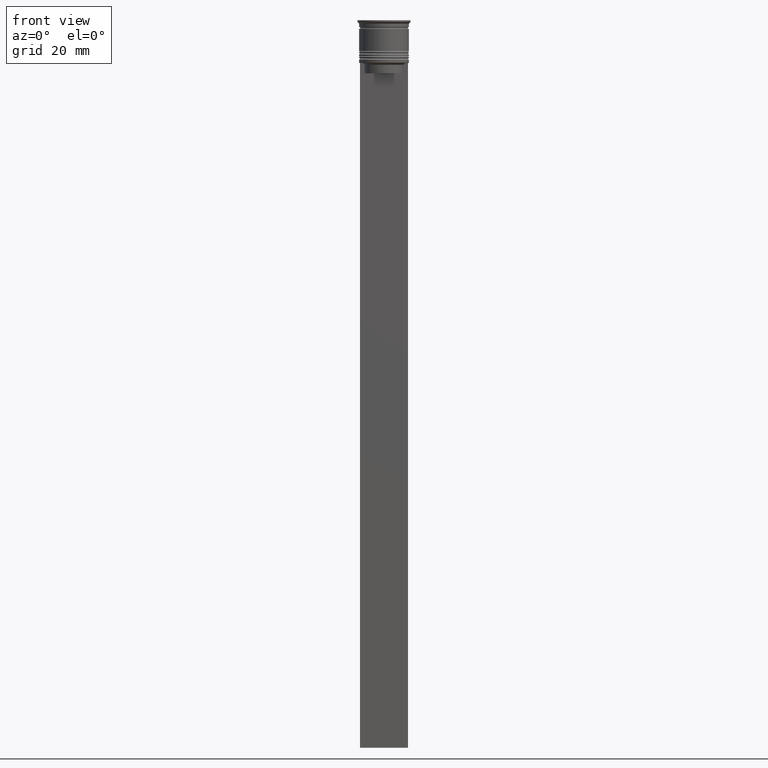
[diagram: clean part render]
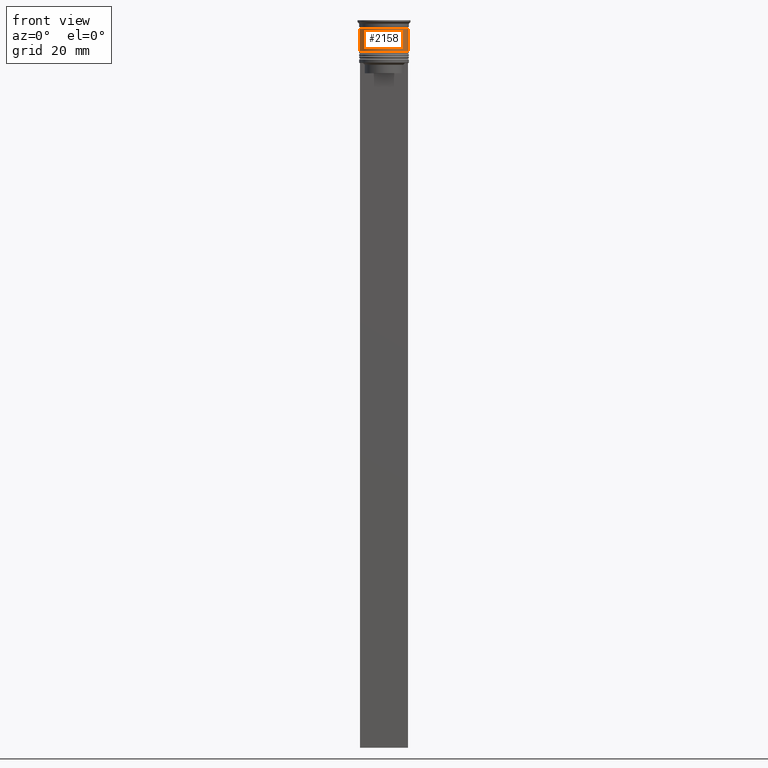
[diagram: same view with one face highlighted and labeled with its STEP entity id]
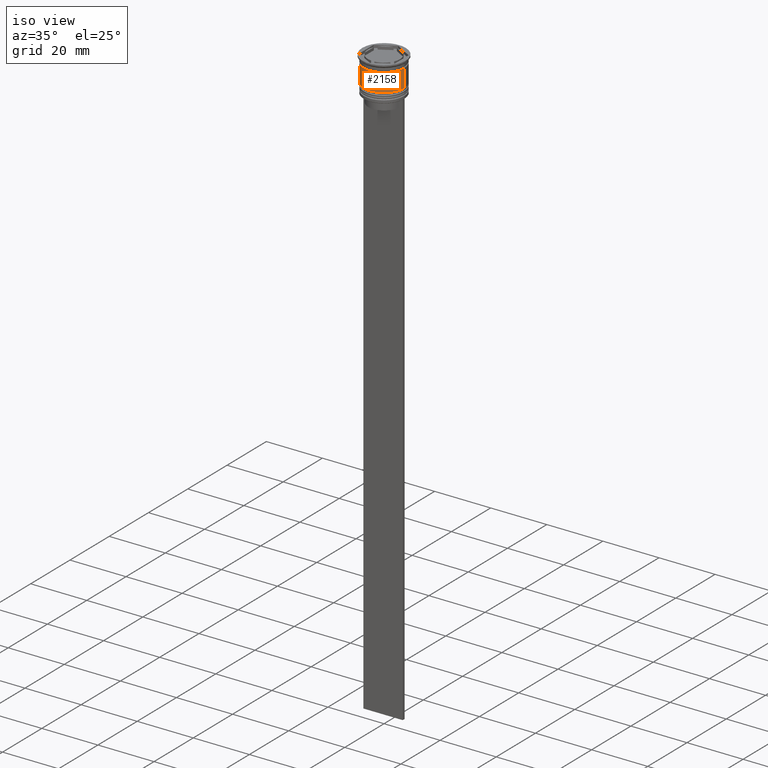
[diagram: same view with one face highlighted and labeled with its STEP entity id]
A machine part, front view. The second image highlights one B-rep face of the part: STEP entity #2158.
A second angle (iso view) of the same face is appended — the face is thin or edge-on in the first view.
In plain terms, the highlighted cylindrical surface (edge-blend (fillet) strip) has radius 7.25 mm, axis along (-0, -0, 1).
Its self-contained STEP definition (entity closure, byte-faithful):
#63 = LINE ( 'NONE', #1468, #908 ) ;
#64 = VERTEX_POINT ( 'NONE', #2242 ) ;
#80 = AXIS2_PLACEMENT_3D ( 'NONE', #1879, #2263, #594 ) ;
#116 = VERTEX_POINT ( 'NONE', #1213 ) ;
#137 = DIRECTION ( 'NONE',  ( 1.000000000000000000, 0.000000000000000000, 0.000000000000000000 ) ) ;
#178 = CARTESIAN_POINT ( 'NONE',  ( -7.249999999999997335, 8.878689293818308102E-16, -2.500000000000000444 ) ) ;
#200 = CARTESIAN_POINT ( 'NONE',  ( 0.000000000000000000, 0.000000000000000000, -9.000000000000001776 ) ) ;
#246 = EDGE_CURVE ( 'NONE', #64, #1268, #882, .T. ) ;
#271 = CYLINDRICAL_SURFACE ( 'NONE', #80, 7.249999999999999112 ) ;
#307 = DIRECTION ( 'NONE',  ( -0.000000000000000000, -0.000000000000000000, 1.000000000000000000 ) ) ;
#390 = EDGE_CURVE ( 'NONE', #64, #116, #2340, .T. ) ;
#526 = CARTESIAN_POINT ( 'NONE',  ( 0.000000000000000000, 0.000000000000000000, -2.500000000000000444 ) ) ;
#594 = DIRECTION ( 'NONE',  ( 1.000000000000000000, 0.000000000000000000, 0.000000000000000000 ) ) ;
#704 = EDGE_LOOP ( 'NONE', ( #1624, #1162, #2027, #1956 ) ) ;
#882 = LINE ( 'NONE', #1599, #2111 ) ;
#908 = VECTOR ( 'NONE', #1113, 1000.000000000000000 ) ;
#983 = AXIS2_PLACEMENT_3D ( 'NONE', #526, #307, #137 ) ;
#1113 = DIRECTION ( 'NONE',  ( -0.000000000000000000, -0.000000000000000000, 1.000000000000000000 ) ) ;
#1162 = ORIENTED_EDGE ( 'NONE', *, *, #390, .T. ) ;
#1213 = CARTESIAN_POINT ( 'NONE',  ( 7.250000000000000888, 0.000000000000000000, -9.000000000000001776 ) ) ;
#1268 = VERTEX_POINT ( 'NONE', #178 ) ;
#1346 = CARTESIAN_POINT ( 'NONE',  ( 7.249999999999997335, 0.000000000000000000, -2.500000000000000444 ) ) ;
#1420 = DIRECTION ( 'NONE',  ( -0.000000000000000000, -0.000000000000000000, 1.000000000000000000 ) ) ;
#1437 = VERTEX_POINT ( 'NONE', #1346 ) ;
#1468 = CARTESIAN_POINT ( 'NONE',  ( 7.249999999999999112, 0.000000000000000000, 0.000000000000000000 ) ) ;
#1599 = CARTESIAN_POINT ( 'NONE',  ( -7.249999999999999112, 8.878689293818310074E-16, 0.000000000000000000 ) ) ;
#1624 = ORIENTED_EDGE ( 'NONE', *, *, #246, .F. ) ;
#1721 = EDGE_CURVE ( 'NONE', #116, #1437, #63, .T. ) ;
#1742 = CIRCLE ( 'NONE', #983, 7.249999999999997335 ) ;
#1845 = DIRECTION ( 'NONE',  ( 1.000000000000000000, 0.000000000000000000, 0.000000000000000000 ) ) ;
#1879 = CARTESIAN_POINT ( 'NONE',  ( 0.000000000000000000, 0.000000000000000000, 0.000000000000000000 ) ) ;
#1956 = ORIENTED_EDGE ( 'NONE', *, *, #2245, .F. ) ;
#1990 = DIRECTION ( 'NONE',  ( -0.000000000000000000, -0.000000000000000000, 1.000000000000000000 ) ) ;
#2027 = ORIENTED_EDGE ( 'NONE', *, *, #1721, .T. ) ;
#2059 = FACE_OUTER_BOUND ( 'NONE', #704, .T. ) ;
#2111 = VECTOR ( 'NONE', #1420, 1000.000000000000000 ) ;
#2158 = ADVANCED_FACE ( 'NONE', ( #2059 ), #271, .T. ) ;
#2242 = CARTESIAN_POINT ( 'NONE',  ( -7.250000000000000888, 8.878689293818312046E-16, -9.000000000000001776 ) ) ;
#2245 = EDGE_CURVE ( 'NONE', #1268, #1437, #1742, .T. ) ;
#2263 = DIRECTION ( 'NONE',  ( -0.000000000000000000, -0.000000000000000000, 1.000000000000000000 ) ) ;
#2302 = AXIS2_PLACEMENT_3D ( 'NONE', #200, #1990, #1845 ) ;
#2340 = CIRCLE ( 'NONE', #2302, 7.250000000000000888 ) ;